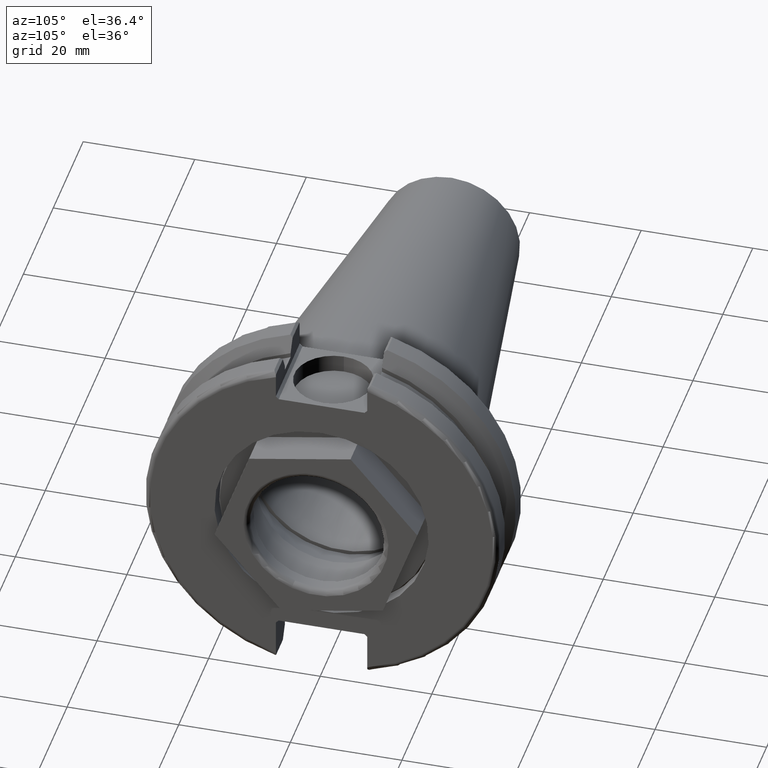
[diagram: clean part render]
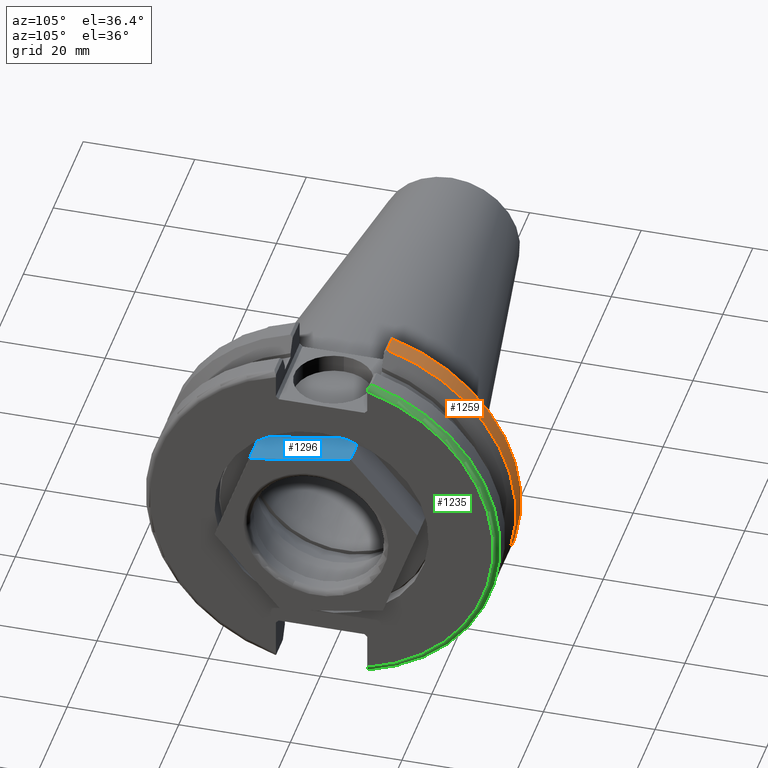
[diagram: same view with three faces highlighted in distinct colors, each labeled with its STEP entity id]
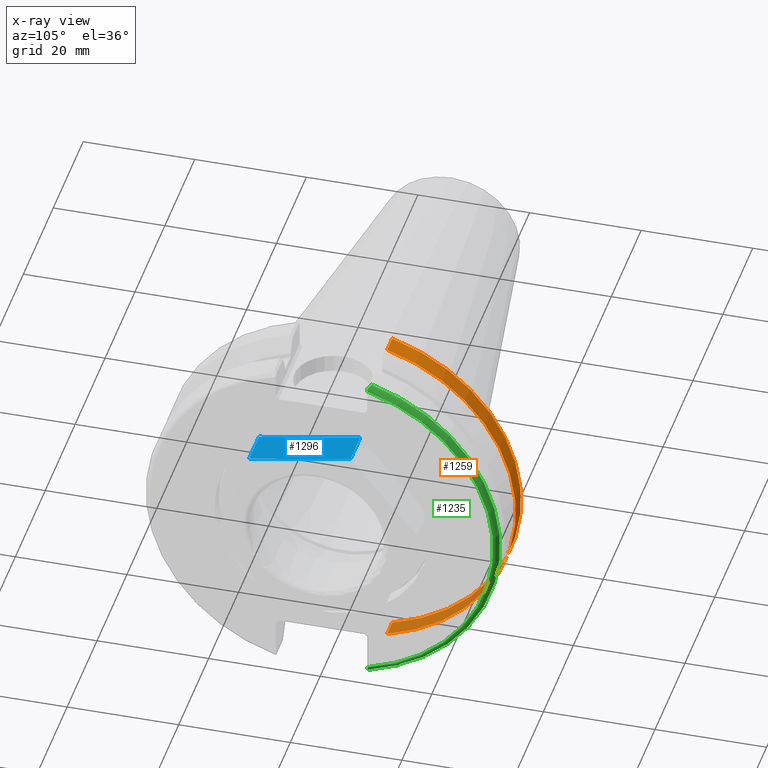
[diagram: x-ray of the same camera — body ghosted, the three highlighted faces saturated]
A machine part, auxiliary view with three faces highlighted in distinct colors.
The next image is the same camera in x-ray (body ghosted, the three faces saturated) — at least one of them is partly hidden behind the body in this view.
Their STEP definitions:

[orange] entity #1259 — the highlighted cylindrical surface (partial cylindrical patch) has radius 31.75 mm, axis along (1, 0, 0).
#165=FACE_OUTER_BOUND('',#246,.T.);
#246=EDGE_LOOP('',(#1034,#1035,#1036,#1037));
#339=LINE('',#2187,#430);
#353=LINE('',#2246,#444);
#430=VECTOR('',#1649,10.);
#444=VECTOR('',#1701,10.);
#496=CIRCLE('',#1410,31.75);
#504=CIRCLE('',#1431,31.75);
#607=VERTEX_POINT('',#2160);
#608=VERTEX_POINT('',#2169);
#609=VERTEX_POINT('',#2186);
#623=VERTEX_POINT('',#2245);
#748=EDGE_CURVE('',#607,#608,#496,.T.);
#751=EDGE_CURVE('',#608,#609,#339,.T.);
#776=EDGE_CURVE('',#623,#607,#353,.T.);
#777=EDGE_CURVE('',#609,#623,#504,.T.);
#1034=ORIENTED_EDGE('',*,*,#748,.F.);
#1035=ORIENTED_EDGE('',*,*,#776,.F.);
#1036=ORIENTED_EDGE('',*,*,#777,.F.);
#1037=ORIENTED_EDGE('',*,*,#751,.F.);
#1215=CYLINDRICAL_SURFACE('',#1430,31.75);
#1259=ADVANCED_FACE('',(#165),#1215,.T.);
#1410=AXIS2_PLACEMENT_3D('',#2170,#1645,#1646);
#1430=AXIS2_PLACEMENT_3D('',#2244,#1699,#1700);
#1431=AXIS2_PLACEMENT_3D('',#2247,#1702,#1703);
#1645=DIRECTION('center_axis',(-1.,0.,0.));
#1646=DIRECTION('ref_axis',(0.,1.,1.60812264967664E-16));
#1649=DIRECTION('',(1.,0.,0.));
#1699=DIRECTION('center_axis',(1.,0.,0.));
#1700=DIRECTION('ref_axis',(0.,1.,0.));
#1701=DIRECTION('',(-1.,0.,0.));
#1702=DIRECTION('center_axis',(1.,0.,0.));
#1703=DIRECTION('ref_axis',(0.,0.,-1.));
#2160=CARTESIAN_POINT('',(4.175,8.67204822802685,30.5427254764662));
#2169=CARTESIAN_POINT('',(4.175,8.67204822802685,-30.5427254764662));
#2170=CARTESIAN_POINT('Origin',(4.175,0.,0.));
#2186=CARTESIAN_POINT('',(7.60083323092435,8.67204822802685,-30.5427254764662));
#2187=CARTESIAN_POINT('',(5.38791661546218,8.67204822802685,-30.5427254764662));
#2244=CARTESIAN_POINT('Origin',(5.38791661546218,0.,0.));
#2245=CARTESIAN_POINT('',(7.60083323092435,8.67204822802685,30.5427254764662));
#2246=CARTESIAN_POINT('',(5.38791661546218,8.67204822802685,30.5427254764662));
#2247=CARTESIAN_POINT('Origin',(7.60083323092435,0.,0.));

[blue] entity #1296 — the highlighted planar face has unit normal (0, -0.1804, 0.9836).
#116=PLANE('',#1499);
#202=FACE_OUTER_BOUND('',#289,.T.);
#289=EDGE_LOOP('',(#1196,#1197,#1198,#1199));
#362=LINE('',#2321,#453);
#373=LINE('',#2367,#464);
#380=LINE('',#2382,#471);
#381=LINE('',#2384,#472);
#453=VECTOR('',#1798,10.);
#464=VECTOR('',#1845,10.);
#471=VECTOR('',#1864,10.);
#472=VECTOR('',#1867,10.);
#635=VERTEX_POINT('',#2318);
#636=VERTEX_POINT('',#2320);
#652=VERTEX_POINT('',#2364);
#653=VERTEX_POINT('',#2366);
#807=EDGE_CURVE('',#635,#636,#362,.T.);
#829=EDGE_CURVE('',#652,#653,#373,.T.);
#837=EDGE_CURVE('',#652,#636,#380,.T.);
#838=EDGE_CURVE('',#653,#635,#381,.T.);
#1196=ORIENTED_EDGE('',*,*,#829,.F.);
#1197=ORIENTED_EDGE('',*,*,#837,.T.);
#1198=ORIENTED_EDGE('',*,*,#807,.F.);
#1199=ORIENTED_EDGE('',*,*,#838,.F.);
#1296=ADVANCED_FACE('',(#202),#116,.T.);
#1499=AXIS2_PLACEMENT_3D('',#2383,#1865,#1866);
#1798=DIRECTION('',(0.,-0.866025403784439,-0.5));
#1845=DIRECTION('',(0.,0.866025403784439,0.5));
#1864=DIRECTION('',(1.,0.,0.));
#1865=DIRECTION('center_axis',(0.,-0.5,0.866025403784439));
#1866=DIRECTION('ref_axis',(0.,-0.866025403784439,-0.5));
#1867=DIRECTION('',(1.,0.,0.));
#2318=CARTESIAN_POINT('',(6.6,0.,18.475208614068));
#2320=CARTESIAN_POINT('',(6.6,-16.,9.23760430703401));
#2321=CARTESIAN_POINT('',(6.6,0.,18.475208614068));
#2364=CARTESIAN_POINT('',(1.11022302462516E-15,-16.,9.23760430703401));
#2366=CARTESIAN_POINT('',(1.11022302462516E-15,-6.49858520003956E-16,18.475208614068));
#2367=CARTESIAN_POINT('',(1.11022302462516E-15,-4.,16.1658075373095));
#2382=CARTESIAN_POINT('',(1.11022302462516E-15,-16.,9.23760430703401));
#2383=CARTESIAN_POINT('Origin',(1.11022302462516E-15,-4.87393890002967E-16,
18.475208614068));
#2384=CARTESIAN_POINT('',(1.11022302462516E-15,-6.49858520003956E-16,18.475208614068));

[green] entity #1235 — the highlighted toroidal blend (fillet) surface has major radius 30.75 mm and minor (blend) radius 1 mm.
#43=B_SPLINE_CURVE_WITH_KNOTS('',3,(#1950,#1951,#1952,#1953,#1954,#1955),
 .UNSPECIFIED.,.F.,.F.,(4,2,4),(0.0977210450333157,0.111963554372601,0.150804064902975),
 .UNSPECIFIED.);
#44=B_SPLINE_CURVE_WITH_KNOTS('',3,(#1959,#1960,#1961,#1962,#1963,#1964),
 .UNSPECIFIED.,.F.,.F.,(4,2,4),(0.452741154494498,0.491581665024872,0.505824174364157),
 .UNSPECIFIED.);
#45=B_SPLINE_CURVE_WITH_KNOTS('',3,(#1966,#1967,#1968,#1969,#1970,#1971,
#1972,#1973),.UNSPECIFIED.,.F.,.F.,(4,2,2,4),(-0.104180282751876,-0.0729784742461443,
-0.0343524753874979,0.),.UNSPECIFIED.);
#46=B_SPLINE_CURVE_WITH_KNOTS('',3,(#1976,#1977,#1978,#1979,#1980,#1981,
#1982,#1983),.UNSPECIFIED.,.F.,.F.,(4,2,2,4),(0.,0.0343524753874976,0.0729784742461442,
0.104180282751876),.UNSPECIFIED.);
#60=TOROIDAL_SURFACE('',#1392,30.75,1.);
#141=FACE_OUTER_BOUND('',#220,.T.);
#220=EDGE_LOOP('',(#889,#890,#891,#892,#893,#894));
#490=CIRCLE('',#1393,30.75);
#491=CIRCLE('',#1394,31.75);
#560=VERTEX_POINT('',#1948);
#561=VERTEX_POINT('',#1949);
#562=VERTEX_POINT('',#1956);
#563=VERTEX_POINT('',#1958);
#564=VERTEX_POINT('',#1965);
#565=VERTEX_POINT('',#1974);
#688=EDGE_CURVE('',#560,#561,#43,.T.);
#689=EDGE_CURVE('',#561,#562,#490,.T.);
#690=EDGE_CURVE('',#562,#563,#44,.T.);
#691=EDGE_CURVE('',#563,#564,#45,.T.);
#692=EDGE_CURVE('',#564,#565,#491,.T.);
#693=EDGE_CURVE('',#565,#560,#46,.T.);
#889=ORIENTED_EDGE('',*,*,#688,.T.);
#890=ORIENTED_EDGE('',*,*,#689,.T.);
#891=ORIENTED_EDGE('',*,*,#690,.T.);
#892=ORIENTED_EDGE('',*,*,#691,.T.);
#893=ORIENTED_EDGE('',*,*,#692,.T.);
#894=ORIENTED_EDGE('',*,*,#693,.T.);
#1235=ADVANCED_FACE('',(#141),#60,.T.);
#1392=AXIS2_PLACEMENT_3D('',#1947,#1578,#1579);
#1393=AXIS2_PLACEMENT_3D('',#1957,#1580,#1581);
#1394=AXIS2_PLACEMENT_3D('',#1975,#1582,#1583);
#1578=DIRECTION('center_axis',(1.,0.,0.));
#1579=DIRECTION('ref_axis',(0.,0.,-1.));
#1580=DIRECTION('center_axis',(-1.,0.,0.));
#1581=DIRECTION('ref_axis',(0.,1.,-6.12323399573677E-17));
#1582=DIRECTION('center_axis',(1.,0.,0.));
#1583=DIRECTION('ref_axis',(0.,1.,-6.12323399573676E-17));
#1947=CARTESIAN_POINT('Origin',(18.05,0.,0.));
#1948=CARTESIAN_POINT('',(18.9058722749097,8.19,30.1755016258903));
#1949=CARTESIAN_POINT('',(19.05,8.19,29.6392712461019));
#1950=CARTESIAN_POINT('Ctrl Pts',(18.9058722749097,8.19,30.1755016258903));
#1951=CARTESIAN_POINT('Ctrl Pts',(18.9318163728133,8.19,30.131014531546));
#1952=CARTESIAN_POINT('Ctrl Pts',(18.9539643471756,8.19,30.0852355256475));
#1953=CARTESIAN_POINT('Ctrl Pts',(19.020485567083,8.19,29.9212724384851));
#1954=CARTESIAN_POINT('Ctrl Pts',(19.05,8.19,29.7687396145364));
#1955=CARTESIAN_POINT('Ctrl Pts',(19.05,8.19,29.6392712461019));
#1956=CARTESIAN_POINT('',(19.05,8.19,-29.6392712461019));
#1957=CARTESIAN_POINT('Origin',(19.05,0.,0.));
#1958=CARTESIAN_POINT('',(18.9058722749097,8.19,-30.1755016258903));
#1959=CARTESIAN_POINT('Ctrl Pts',(19.05,8.19,-29.6392712461019));
#1960=CARTESIAN_POINT('Ctrl Pts',(19.05,8.19,-29.7687396145364));
#1961=CARTESIAN_POINT('Ctrl Pts',(19.020485567083,8.19,-29.9212724384851));
#1962=CARTESIAN_POINT('Ctrl Pts',(18.9539643471756,8.19,-30.0852355256475));
#1963=CARTESIAN_POINT('Ctrl Pts',(18.9318163728133,8.19,-30.131014531546));
#1964=CARTESIAN_POINT('Ctrl Pts',(18.9058722749097,8.19,-30.1755016258903));
#1965=CARTESIAN_POINT('',(18.05,8.67204822802685,-30.5427254764662));
#1966=CARTESIAN_POINT('Ctrl Pts',(18.9058722749097,8.19,-30.1755016258903));
#1967=CARTESIAN_POINT('Ctrl Pts',(18.8574463042989,8.2703682833078,-30.2367261024977));
#1968=CARTESIAN_POINT('Ctrl Pts',(18.7926702662319,8.34909446036477,-30.2966996242308));
#1969=CARTESIAN_POINT('Ctrl Pts',(18.6396724190507,8.48862804755883,-30.4029961692546));
#1970=CARTESIAN_POINT('Ctrl Pts',(18.5184414294771,8.56482138642532,-30.4610401774263));
#1971=CARTESIAN_POINT('Ctrl Pts',(18.2983170433775,8.6471881193939,-30.5237870709558));
#1972=CARTESIAN_POINT('Ctrl Pts',(18.1645082512917,8.67204822802685,-30.5427254764662));
#1973=CARTESIAN_POINT('Ctrl Pts',(18.05,8.67204822802685,-30.5427254764662));
#1974=CARTESIAN_POINT('',(18.05,8.67204822802685,30.5427254764662));
#1975=CARTESIAN_POINT('Origin',(18.05,0.,0.));
#1976=CARTESIAN_POINT('Ctrl Pts',(18.05,8.67204822802686,30.5427254764662));
#1977=CARTESIAN_POINT('Ctrl Pts',(18.1645082512917,8.67204822802686,30.5427254764662));
#1978=CARTESIAN_POINT('Ctrl Pts',(18.2983170433775,8.6471881193939,30.5237870709558));
#1979=CARTESIAN_POINT('Ctrl Pts',(18.5184414294771,8.56482138642532,30.4610401774263));
#1980=CARTESIAN_POINT('Ctrl Pts',(18.6396724190507,8.48862804755883,30.4029961692546));
#1981=CARTESIAN_POINT('Ctrl Pts',(18.7926702662319,8.34909446036477,30.2966996242308));
#1982=CARTESIAN_POINT('Ctrl Pts',(18.8574463042989,8.2703682833078,30.2367261024977));
#1983=CARTESIAN_POINT('Ctrl Pts',(18.9058722749097,8.19,30.1755016258903));